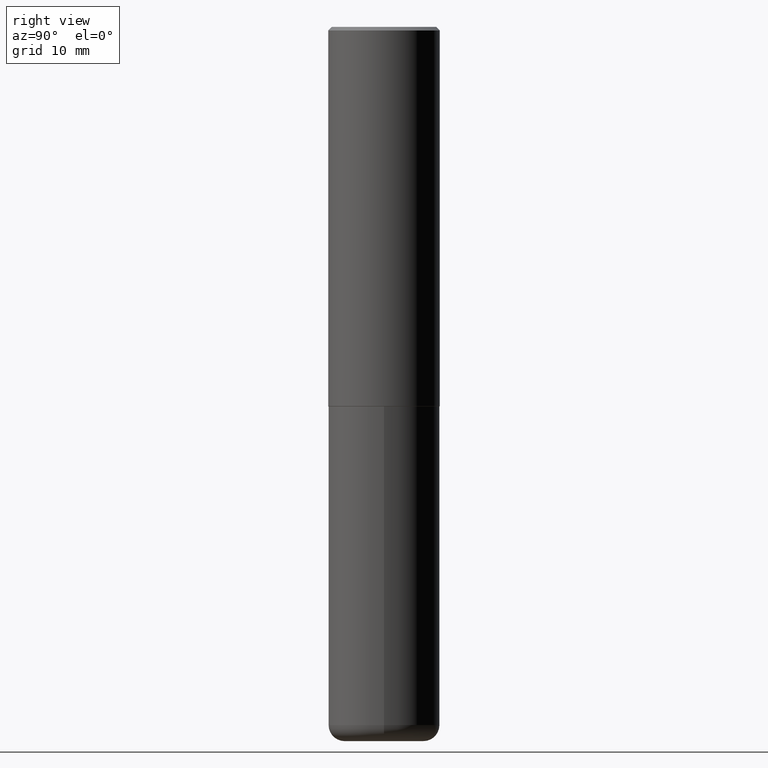
[diagram: clean part render]
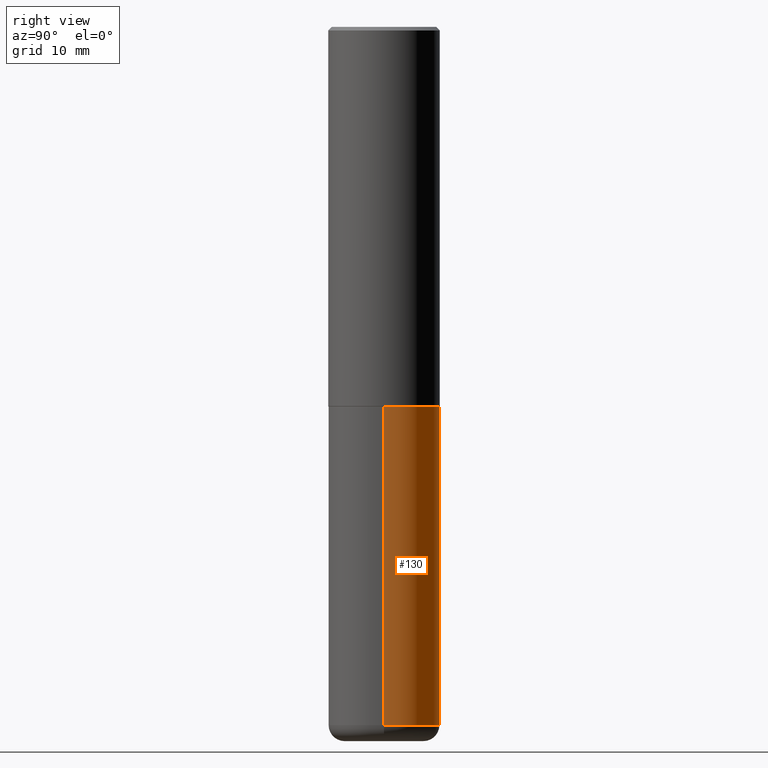
[diagram: same view with one face highlighted and labeled with its STEP entity id]
A machine part, right view. The second image highlights one B-rep face of the part: STEP entity #130.
In plain terms, the highlighted cylindrical surface (partial cylindrical patch) has radius 7.9375 mm, axis along (-0, 0, 1).
Its self-contained STEP definition (entity closure, byte-faithful):
#2 = AXIS2_PLACEMENT_3D ( 'NONE', #319, #168, #28 ) ;
#12 = FACE_OUTER_BOUND ( 'NONE', #245, .T. ) ;
#17 = CARTESIAN_POINT ( 'NONE',  ( 0.000000000000000000, 0.000000000000000000, 0.000000000000000000 ) ) ;
#28 = DIRECTION ( 'NONE',  ( 1.000000000000000000, -6.982962677686265133E-15, 0.000000000000000000 ) ) ;
#52 = ORIENTED_EDGE ( 'NONE', *, *, #202, .F. ) ;
#59 = AXIS2_PLACEMENT_3D ( 'NONE', #17, #82, #152 ) ;
#62 = DIRECTION ( 'NONE',  ( -2.445468806185136877E-29, 3.491481338843145188E-15, 1.000000000000000000 ) ) ;
#65 = CARTESIAN_POINT ( 'NONE',  ( 0.3125000000000000000, -2.182175836776958347E-15, 1.523805242436230075E-29 ) ) ;
#74 = LINE ( 'NONE', #65, #406 ) ;
#82 = DIRECTION ( 'NONE',  ( -2.445468806185136597E-29, 3.491481338843145583E-15, 1.000000000000000000 ) ) ;
#84 = VERTEX_POINT ( 'NONE', #325 ) ;
#112 = DIRECTION ( 'NONE',  ( -2.445468806185136597E-29, 3.491481338843145583E-15, 1.000000000000000000 ) ) ;
#116 = CYLINDRICAL_SURFACE ( 'NONE', #59, 0.3125000000000000000 ) ;
#130 = ADVANCED_FACE ( 'NONE', ( #12 ), #116, .T. ) ;
#152 = DIRECTION ( 'NONE',  ( 1.000000000000000000, -6.982962677686266711E-15, 4.876176775795936353E-29 ) ) ;
#157 = EDGE_CURVE ( 'NONE', #214, #287, #219, .T. ) ;
#158 = ORIENTED_EDGE ( 'NONE', *, *, #228, .F. ) ;
#168 = DIRECTION ( 'NONE',  ( -2.445468806185136597E-29, 3.491481338843145583E-15, 1.000000000000000000 ) ) ;
#202 = EDGE_CURVE ( 'NONE', #342, #84, #74, .T. ) ;
#214 = VERTEX_POINT ( 'NONE', #260 ) ;
#219 = LINE ( 'NONE', #385, #280 ) ;
#228 = EDGE_CURVE ( 'NONE', #84, #287, #256, .T. ) ;
#245 = EDGE_LOOP ( 'NONE', ( #271, #350, #158, #52 ) ) ;
#256 = CIRCLE ( 'NONE', #2, 0.3125000000000000000 ) ;
#260 = CARTESIAN_POINT ( 'NONE',  ( -0.3125000000000000000, -1.143124598562638756E-14, -3.910000000000000142 ) ) ;
#271 = ORIENTED_EDGE ( 'NONE', *, *, #413, .T. ) ;
#280 = VECTOR ( 'NONE', #62, 39.37007874015748143 ) ;
#287 = VERTEX_POINT ( 'NONE', #415 ) ;
#291 = DIRECTION ( 'NONE',  ( -2.445468806185136877E-29, 3.491481338843145188E-15, 1.000000000000000000 ) ) ;
#297 = CARTESIAN_POINT ( 'NONE',  ( 9.561783032183883600E-29, -1.365169203487670064E-14, -3.910000000000000142 ) ) ;
#305 = AXIS2_PLACEMENT_3D ( 'NONE', #297, #112, #372 ) ;
#319 = CARTESIAN_POINT ( 'NONE',  ( 5.196621213143414147E-29, -7.419397845041682046E-15, -2.124999999999999556 ) ) ;
#325 = CARTESIAN_POINT ( 'NONE',  ( 0.3125000000000000000, -9.601573681818640393E-15, -2.124999999999999556 ) ) ;
#342 = VERTEX_POINT ( 'NONE', #401 ) ;
#350 = ORIENTED_EDGE ( 'NONE', *, *, #157, .T. ) ;
#371 = CIRCLE ( 'NONE', #305, 0.3125000000000000000 ) ;
#372 = DIRECTION ( 'NONE',  ( 1.000000000000000000, -6.982962677686269077E-15, 0.000000000000000000 ) ) ;
#385 = CARTESIAN_POINT ( 'NONE',  ( -0.3125000000000000000, 2.220446049250313081E-15, -1.537167215704658232E-29 ) ) ;
#401 = CARTESIAN_POINT ( 'NONE',  ( 0.3125000000000000000, -1.583386787165366057E-14, -3.910000000000000142 ) ) ;
#406 = VECTOR ( 'NONE', #291, 39.37007874015748143 ) ;
#413 = EDGE_CURVE ( 'NONE', #342, #214, #371, .T. ) ;
#415 = CARTESIAN_POINT ( 'NONE',  ( -0.3125000000000000000, -8.315098890708878264E-15, -2.124999999999999556 ) ) ;